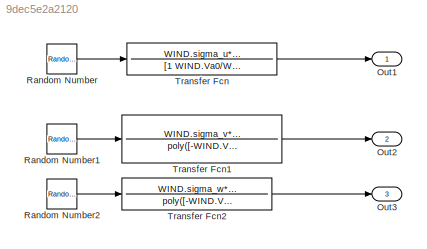
MODEL slx_9dec5e2a2120
KIND model
CONFIG AbsTol = auto
CONFIG EnableMultiTasking = off
CONFIG FixedStep = 1
CONFIG MaxStep = auto
CONFIG MinStep = auto
CONFIG RelTol = 1e-3
CONFIG SampleTimeConstraint = Unconstrained
CONFIG Solver = FixedStepAuto
CONFIG SolverName = FixedStepAuto
CONFIG StartTime = 0.0
CONFIG StopTime = 1
BLOCK [Outport] Out1
  IconDisplay = Port number
BLOCK [Outport] Out2
  IconDisplay = Port number
  Port = 2
BLOCK [Outport] Out3
  IconDisplay = Port number
  Port = 3
BLOCK [RandomNumber] Random Number
  SampleTime = 1
BLOCK [RandomNumber] Random Number1
  SampleTime = 1
BLOCK [RandomNumber] Random Number2
  SampleTime = 1
BLOCK [TransferFcn] Transfer Fcn
  Denominator = [1 WIND.Va0/WIND.L_u]
  Numerator = WIND.sigma_u*sqrt(2*WIND.Va0/WIND.L_u)
BLOCK [TransferFcn] Transfer Fcn1
  Denominator = poly([-WIND.Va0/WIND.L_v, -WIND.Va0/WIND.L_v])
  Numerator = WIND.sigma_v*sqrt(3*WIND.Va0/WIND.L_v)*[0, 1, WIND.Va0/sqrt(3)/WIND.L_v]
BLOCK [TransferFcn] Transfer Fcn2
  Denominator = poly([-WIND.Va0/WIND.L_w, -WIND.Va0/WIND.L_w])
  Numerator = WIND.sigma_w*sqrt(3*WIND.Va0/WIND.L_w)*[0, 1, WIND.Va0/sqrt(3)/WIND.L_w]
LINE Random Number1:1 -> Transfer Fcn1:1
LINE Random Number2:1 -> Transfer Fcn2:1
LINE Random Number:1 -> Transfer Fcn:1
LINE Transfer Fcn1:1 -> Out2:1
LINE Transfer Fcn2:1 -> Out3:1
LINE Transfer Fcn:1 -> Out1:1
